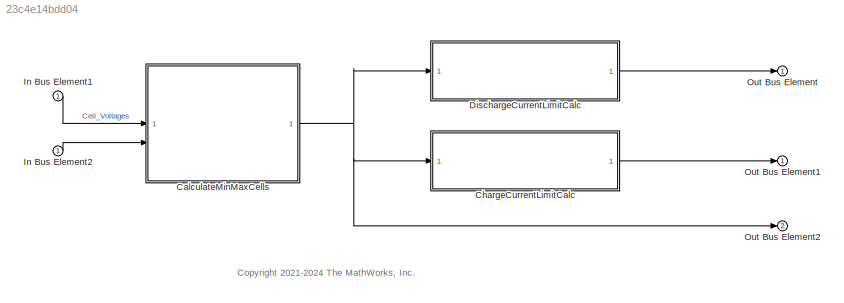
MODEL slx_23c4e14bdd04
KIND model
CONFIG AbsTol = auto
CONFIG EnableMultiTasking = off
CONFIG FixedStep = auto
CONFIG MaxStep = auto
CONFIG MinStep = auto
CONFIG RelTol = 1e-3
CONFIG SampleTimeConstraint = Unconstrained
CONFIG SolverName = FixedStepDiscrete
CONFIG StartTime = 0.0
CONFIG StopTime = 10000
WORKSPACE source: mxarray member
WORKSPACE MaxChrgCurrLim: Simulink.Parameter (value not decoded)
WORKSPACE MaxDchrgCurrLim: Simulink.Parameter (value not decoded)
WORKSPACE MinCellVoltDchrgCurrentLimTable: Simulink.LookupTable (value not decoded)
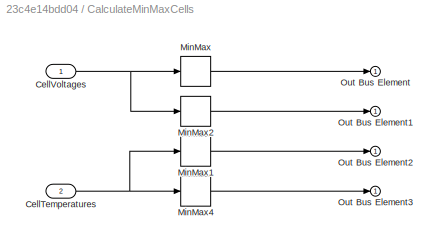
BLOCK [SubSystem] CalculateMinMaxCells
BLOCK [Inport] CalculateMinMaxCells/CellTemperatures
  Port = 2
BLOCK [Inport] CalculateMinMaxCells/CellVoltages
BLOCK [MinMax] CalculateMinMaxCells/MinMax
BLOCK [MinMax] CalculateMinMaxCells/MinMax1
BLOCK [MinMax] CalculateMinMaxCells/MinMax2
  Function = max
BLOCK [MinMax] CalculateMinMaxCells/MinMax4
  Function = max
BLOCK [Outport] CalculateMinMaxCells/Out Bus Element
BLOCK [Outport] CalculateMinMaxCells/Out Bus Element1
BLOCK [Outport] CalculateMinMaxCells/Out Bus Element2
BLOCK [Outport] CalculateMinMaxCells/Out Bus Element3
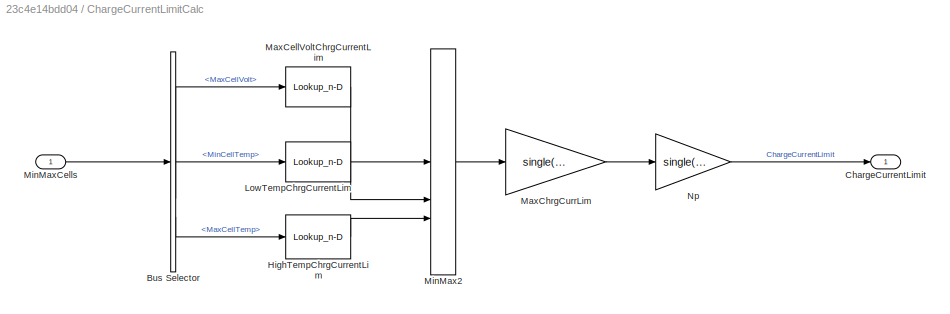
BLOCK [SubSystem] ChargeCurrentLimitCalc
BLOCK [BusSelector] ChargeCurrentLimitCalc/Bus Selector
  OutputSignals = MaxCellVolt,MinCellTemp,MaxCellTemp
BLOCK [Outport] ChargeCurrentLimitCalc/ChargeCurrentLimit
  VectorParamsAs1DForOutWhenUnconnected = off
BLOCK [Lookup_n-D] ChargeCurrentLimitCalc/HighTempChrgCurrentLim
  BreakpointsForDimension1 = single([40  45  50  55 60])
  ExtrapMethod = Clip
  InputPortMap = u0
  InternalRulePriority = Speed
  NumberOfTableDimensions = 1
  RndMeth = Simplest
  Table = single([1.0 0.8 0.5 0.3 0])
BLOCK [Lookup_n-D] ChargeCurrentLimitCalc/LowTempChrgCurrentLim
  BreakpointsForDimension1 = single([-15 -10 -5.0 0.0 5.0 10 15.0])
  ExtrapMethod = Clip
  InputPortMap = u0
  InternalRulePriority = Speed
  NumberOfTableDimensions = 1
  RndMeth = Simplest
  Table = single([0.1 0.2  0.3 0.3 0.5 1.0 1.0])
BLOCK [Lookup_n-D] ChargeCurrentLimitCalc/MaxCellVoltChrgCurrentLim
  BreakpointsForDimension1 = single([3.9 4.0 4.15 4.2])
  ExtrapMethod = Clip
  InputPortMap = u0
  InternalRulePriority = Speed
  NumberOfTableDimensions = 1
  RndMeth = Simplest
  Table = single([1.0 0.8 0.3  0.3])
BLOCK [Gain] ChargeCurrentLimitCalc/MaxChrgCurrLim
  Gain = single(MaxChrgCurrLim)
BLOCK [MinMax] ChargeCurrentLimitCalc/MinMax2
  Inputs = 3
BLOCK [Inport] ChargeCurrentLimitCalc/MinMaxCells
BLOCK [Gain] ChargeCurrentLimitCalc/Np
  Gain = single(PlntBattNumCellPar)
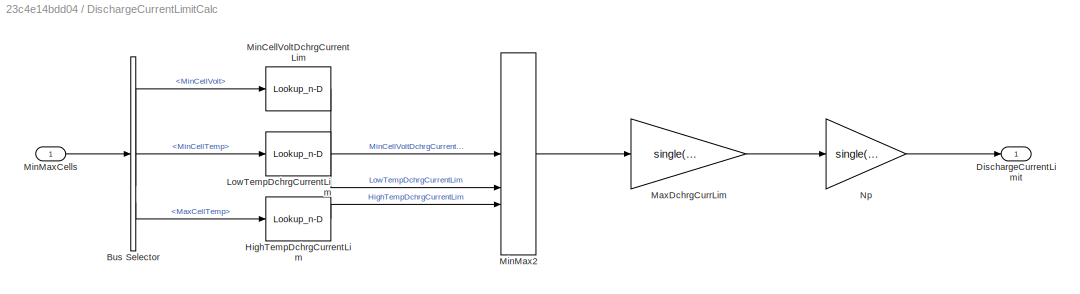
BLOCK [SubSystem] DischargeCurrentLimitCalc
BLOCK [BusSelector] DischargeCurrentLimitCalc/Bus Selector
  OutputSignals = MinCellVolt,MinCellTemp,MaxCellTemp
BLOCK [Outport] DischargeCurrentLimitCalc/DischargeCurrentLimit
  VectorParamsAs1DForOutWhenUnconnected = off
BLOCK [Lookup_n-D] DischargeCurrentLimitCalc/HighTempDchrgCurrentLim
  BreakpointsForDimension1 = single([40, 45, 50, 60])
  ExtrapMethod = Clip
  InputPortMap = u0
  InternalRulePriority = Speed
  NumberOfTableDimensions = 1
  RndMeth = Simplest
  Table = single([1, 0.5, 0.3, 0])
BLOCK [Lookup_n-D] DischargeCurrentLimitCalc/LowTempDchrgCurrentLim
  BreakpointsForDimension1 = single([-10, -5,    0,   5, 10, 15, 20])
  ExtrapMethod = Clip
  InputPortMap = u0
  InternalRulePriority = Speed
  NumberOfTableDimensions = 1
  RndMeth = Simplest
  Table = single([0,  0.2, 0.3, 0.5, 0.75, 1, 1])
BLOCK [Gain] DischargeCurrentLimitCalc/MaxDchrgCurrLim
  Gain = single(MaxDchrgCurrLim)
BLOCK [Lookup_n-D] DischargeCurrentLimitCalc/MinCellVoltDchrgCurrentLim
  BreakpointsForDimension1 = single([2.5 2.75 3])
  ExtrapMethod = Clip
  InputPortMap = u0
  InternalRulePriority = Speed
  LookupTableObject = MinCellVoltDchrgCurrentLimTable
  NumberOfTableDimensions = 1
  RndMeth = Simplest
  Table = single([0 0.5 1])
BLOCK [MinMax] DischargeCurrentLimitCalc/MinMax2
  Inputs = 3
BLOCK [Inport] DischargeCurrentLimitCalc/MinMaxCells
BLOCK [Gain] DischargeCurrentLimitCalc/Np
  Gain = single(PlntBattNumCellPar)
BLOCK [Inport] In Bus Element1
BLOCK [Inport] In Bus Element2
BLOCK [Outport] Out Bus Element
BLOCK [Outport] Out Bus Element1
BLOCK [Outport] Out Bus Element2
  Port = 2
ANNOTATION (root): <copyright redacted>
NET CalculateMinMaxCells/CellTemperatures:1 -> CalculateMinMaxCells/MinMax1:1, CalculateMinMaxCells/MinMax4:1
NET CalculateMinMaxCells/CellVoltages:1 -> CalculateMinMaxCells/MinMax2:1, CalculateMinMaxCells/MinMax:1
LINE CalculateMinMaxCells/MinMax1:1 -> CalculateMinMaxCells/Out Bus Element2:1
LINE CalculateMinMaxCells/MinMax2:1 -> CalculateMinMaxCells/Out Bus Element1:1
LINE CalculateMinMaxCells/MinMax4:1 -> CalculateMinMaxCells/Out Bus Element3:1
LINE CalculateMinMaxCells/MinMax:1 -> CalculateMinMaxCells/Out Bus Element:1
NET CalculateMinMaxCells:1 -> ChargeCurrentLimitCalc:1, DischargeCurrentLimitCalc:1, Out Bus Element2:1
LINE ChargeCurrentLimitCalc/Bus Selector:1 -> ChargeCurrentLimitCalc/MaxCellVoltChrgCurrentLim:1
LINE ChargeCurrentLimitCalc/Bus Selector:2 -> ChargeCurrentLimitCalc/LowTempChrgCurrentLim:1
LINE ChargeCurrentLimitCalc/Bus Selector:3 -> ChargeCurrentLimitCalc/HighTempChrgCurrentLim:1
LINE ChargeCurrentLimitCalc/HighTempChrgCurrentLim:1 -> ChargeCurrentLimitCalc/MinMax2:3
LINE ChargeCurrentLimitCalc/LowTempChrgCurrentLim:1 -> ChargeCurrentLimitCalc/MinMax2:2
LINE ChargeCurrentLimitCalc/MaxCellVoltChrgCurrentLim:1 -> ChargeCurrentLimitCalc/MinMax2:1
LINE ChargeCurrentLimitCalc/MaxChrgCurrLim:1 -> ChargeCurrentLimitCalc/Np:1
LINE ChargeCurrentLimitCalc/MinMax2:1 -> ChargeCurrentLimitCalc/MaxChrgCurrLim:1
LINE ChargeCurrentLimitCalc/MinMaxCells:1 -> ChargeCurrentLimitCalc/Bus Selector:1
LINE ChargeCurrentLimitCalc/Np:1 -> ChargeCurrentLimitCalc/ChargeCurrentLimit:1
LINE ChargeCurrentLimitCalc:1 -> Out Bus Element1:1
LINE DischargeCurrentLimitCalc/Bus Selector:1 -> DischargeCurrentLimitCalc/MinCellVoltDchrgCurrentLim:1
LINE DischargeCurrentLimitCalc/Bus Selector:2 -> DischargeCurrentLimitCalc/LowTempDchrgCurrentLim:1
LINE DischargeCurrentLimitCalc/Bus Selector:3 -> DischargeCurrentLimitCalc/HighTempDchrgCurrentLim:1
LINE DischargeCurrentLimitCalc/HighTempDchrgCurrentLim:1 -> DischargeCurrentLimitCalc/MinMax2:3
LINE DischargeCurrentLimitCalc/LowTempDchrgCurrentLim:1 -> DischargeCurrentLimitCalc/MinMax2:2
LINE DischargeCurrentLimitCalc/MaxDchrgCurrLim:1 -> DischargeCurrentLimitCalc/Np:1
LINE DischargeCurrentLimitCalc/MinCellVoltDchrgCurrentLim:1 -> DischargeCurrentLimitCalc/MinMax2:1
LINE DischargeCurrentLimitCalc/MinMax2:1 -> DischargeCurrentLimitCalc/MaxDchrgCurrLim:1
LINE DischargeCurrentLimitCalc/MinMaxCells:1 -> DischargeCurrentLimitCalc/Bus Selector:1
LINE DischargeCurrentLimitCalc/Np:1 -> DischargeCurrentLimitCalc/DischargeCurrentLimit:1
LINE DischargeCurrentLimitCalc:1 -> Out Bus Element:1
LINE In Bus Element1:1 -> CalculateMinMaxCells:1
LINE In Bus Element2:1 -> CalculateMinMaxCells:2
note: NET lines group one-source signal fan-out (src -> all destinations, sorted); 1:1 wires keep LINE
